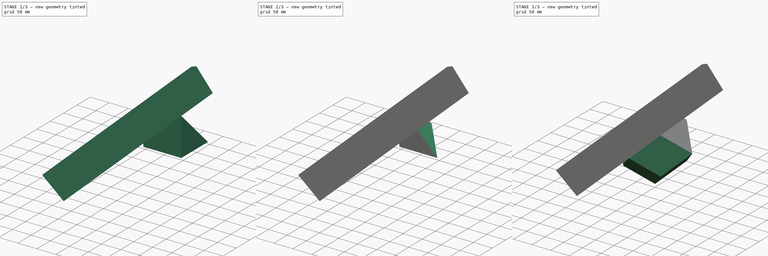
[diagram: build sequence overview — one tinted view per stage of 3, left to right]
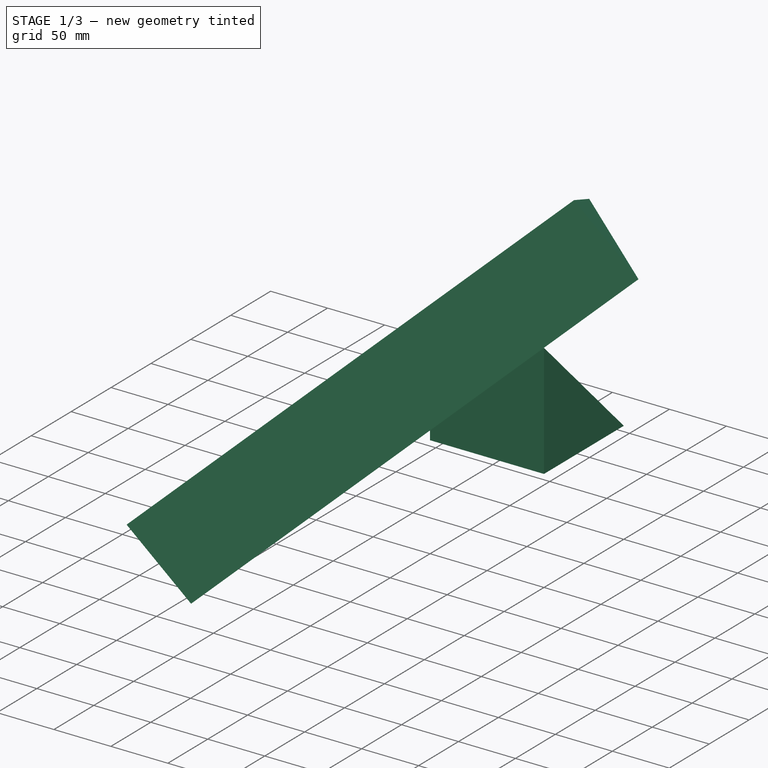
[diagram: stage 1 of 3 — iso view after this stage's code; geometry added in this stage tinted green]
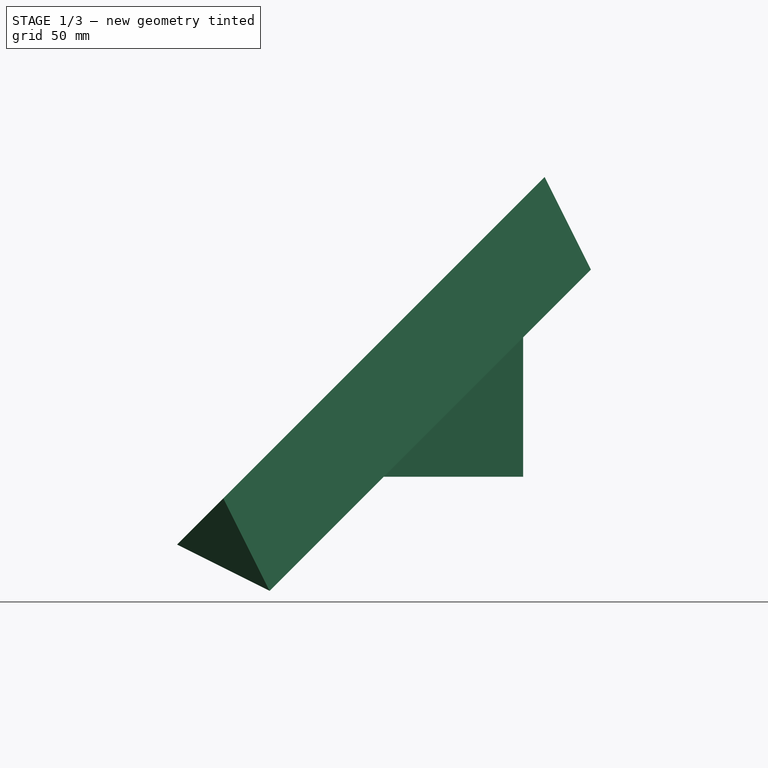
[diagram: stage 1 of 3 — front view after this stage's code; geometry added in this stage tinted green]
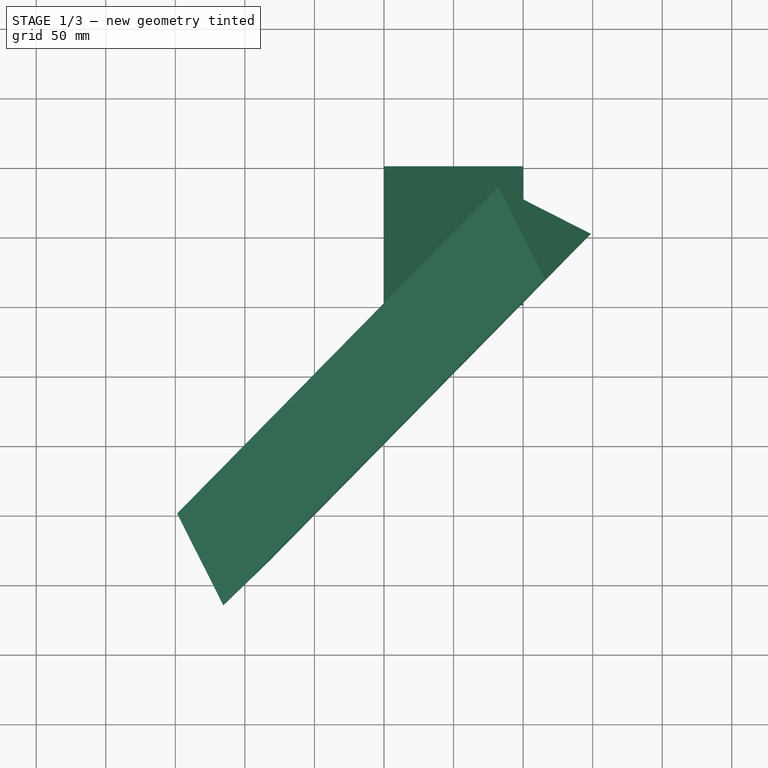
[diagram: stage 1 of 3 — top view after this stage's code; geometry added in this stage tinted green]
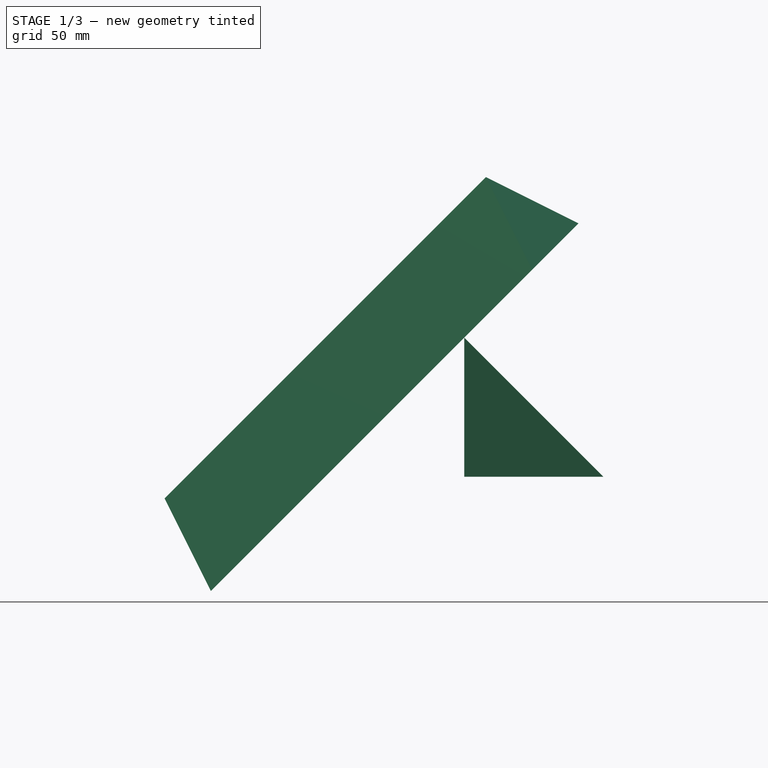
[diagram: stage 1 of 3 — right view after this stage's code; geometry added in this stage tinted green]
FCSTD DOCUMENT  (FreeCAD 1.0R39319 (Git))
Label: rhombic-dodecahedron
License: All rights reserved
LicenseURL: https://en.wikipedia.org/wiki/All_rights_reserved
objects: PartDesign::Plane×5, PartDesign::Pocket×3, PartDesign::Mirrored×3, PartDesign::Body×2, PartDesign::Point×2, App::VarSet×1, PartDesign::AdditiveBox×1, PartDesign::SubShapeBinder×1, PartDesign::CoordinateSystem×1, Sketcher::SketchObject×1, PartDesign::Pad×1
note: 34 computed .brp shape members not serialized (recipe doc carries the construction recipe); baked Part::Feature solids carry a one-line shape summary decoded from their .brp

FEATURE [App::VarSet] VarSet
  Dode = 70.7107
  DodeSize = 100
  expr: Dode = sqrt(2) * DodeSize * 0.5
FEATURE [PartDesign::AdditiveBox] Box
  AttacherType = Attacher::AttachEngine3D
  AttachmentSupport = -> [VarSet]
  Height = 100
  Length = 100
  Refine = true
  Suppressed = false
  Width = 100
  expr: Height = VarSet.DodeSize
  expr: Length = VarSet.DodeSize
  expr: Width = VarSet.DodeSize
FEATURE [PartDesign::Plane] DatumPlane
  AttachmentOffset = pos=(0,0,0) rot=(1,0,0;0.785398rad)
  AttachmentSupport = -> [Box]
  Length = 247.568
  MapMode = 47
  Placement = pos=(100,100,100) rot=(0,0.92388,-0.382683;3.14159rad)
  ResizeMode = 0
  Width = 330.411
FEATURE [PartDesign::Plane] DatumPlane001
  AttachmentOffset = pos=(0,0,0) rot=(-1,0,0;0.785398rad)
  AttachmentSupport = -> [Box]
  Length = 247.568
  MapMode = 47
  Placement = pos=(100,100,100) rot=(0.678598,-0.678598,-0.281085;2.59356rad)
  ResizeMode = 0
  Width = 330.411
FEATURE [PartDesign::Plane] DatumPlane002
  AttachmentOffset = pos=(0,0,0) rot=(1,0,0;0.785398rad)
  AttachmentSupport = -> [Box]
  Length = 247.568
  MapMode = 47
  Placement = pos=(100,100,100) rot=(0.678598,0.281085,-0.678598;2.59356rad)
  ResizeMode = 0
  Width = 330.411
FEATURE [PartDesign::Pocket] Pocket
  BaseFeature = -> Box
  Direction = (0,0.707107,0.707107)
  Length = 70.7107
  Length2 = 5
  Profile = -> DatumPlane
  Refine = true
  Reversed = true
  Suppressed = false
  Type = 0
  expr: Length = VarSet.Dode
FEATURE [PartDesign::Body] Body  label="rhombic-dodecahedron"
  AllowCompound = false
  Group = -> [Box,DatumPlane,DatumPlane001,DatumPlane002,Pocket,Pocket001,Pocket002,Mirrored,Mirrored001,Mirrored002]
  Origin = -> Origin
  Tip = -> Mirrored002
FEATURE [PartDesign::SubShapeBinder] Binder
  BindCopyOnChange = 0
  BindMode = 0
  ClaimChildren = false
  Context = -> Body001 [Binder.]
  Fuse = false
  MakeFace = true
  OffsetFill = false
  OffsetIntersection = false
  OffsetJoinType = 0
  OffsetOpenResult = false
  PartialLoad = false
  Refine = true
  Relative = true
  Support = -> [Body[Mirrored002.Face7]]
  _Version = 2
FEATURE [PartDesign::Point] DatumPoint
  AttacherType = Attacher::AttachEnginePoint
  AttachmentSupport = -> [Binder]
  MapMode = 37
  Placement = pos=(-6.2e-15,-50,50) rot=(0,0,1;0rad)
FEATURE [PartDesign::Plane] DatumPlane003
  AttachmentSupport = -> [Binder,DatumPoint]
  Length = 526.044
  MapMode = 7
  Placement = pos=(-33.3333,-33.3333,66.6667) rot=(0.187053,0.451587,0.872399;2.44807rad)
  ResizeMode = 0
  Width = 599.739
FEATURE [PartDesign::Point] DatumPoint001
  AttacherType = Attacher::AttachEnginePoint
  AttachmentSupport = -> [DatumPlane003]
  MapMode = 32
  Placement = pos=(-33.3333,-33.3333,66.6667) rot=(0.187053,0.451587,0.872399;2.44807rad)
FEATURE [PartDesign::CoordinateSystem] Local_CS
  AttacherType = Attacher::AttachEngine3D
  AttachmentSupport = -> [DatumPoint,DatumPoint001,Binder]
  MapMode = 49
  Placement = pos=(-6.2e-15,-50,50) rot=(0.120741,-0.379884,0.91712;2.57432rad)
FEATURE [PartDesign::Plane] DatumPlane004
  AttachmentSupport = -> [Local_CS]
  Length = 593.573
  MapMode = 3
  Placement = pos=(-5e-15,-50,50) rot=(0.281747,0.36718,0.886452;2.90924rad)
  ResizeMode = 0
  Width = 538.433
FEATURE [Sketcher::SketchObject] Sketch
  ArcFitTolerance = 1e-06
  AttachmentSupport = -> [DatumPlane004]
  FullyConstrained = false
  MakeInternals = false
  MapMode = 5
  Placement = pos=(-4.3e-15,-50,50) rot=(0.281747,0.36718,0.886452;2.90924rad)
  sketch-geometry (6):
    g0: GeomPoint X=40.75 Y=0 Z=0
    g1: GeomPoint X=0 Y=70.5811 Z=0
    g2: GeomPoint X=-60.5072 Y=0 Z=0
    g3: LineSegment StartX=40.75 StartY=0 StartZ=0 EndX=0 EndY=70.5811 EndZ=0
    g4: LineSegment StartX=0 StartY=70.5811 StartZ=0 EndX=-40.75 EndY=-4.832e-13 EndZ=0
    g5: LineSegment StartX=-40.75 StartY=-4.787e-13 StartZ=0 EndX=40.75 EndY=0 EndZ=0
  constraints (11):
    c: PointOnObject(g0,g-1)
    c: PointOnObject(g1,g-2)
    c: PointOnObject(g2,g-1)
    c: Coincident(g3,g0)
    c: Coincident(g3,g1)
    c: Coincident(g4,g1)
    c: Coincident(g5,g4)
    c: Coincident(g5,g0)
    c: Symmetric(g0,g4,g-1)
    c: DistanceX(g5,g5) = 81.5
    c: Equal(g4,g5)
FEATURE [PartDesign::Pad] Pad
  Direction = (0.57735,0.57735,0.57735)
  Length = 400
  Length2 = 10
  Midplane = true
  Placement = pos=(-5e-15,-50,50) rot=(0.281747,0.36718,0.886452;2.90924rad)
  Profile = -> Sketch
  ReferenceAxis = -> Sketch [N_Axis]
  Refine = true
  Suppressed = false
  Type = 0
FEATURE [PartDesign::Body] Body001
  AllowCompound = false
  Group = -> [Binder,DatumPoint,DatumPlane003,DatumPoint001,Local_CS,DatumPlane004,Sketch,Pad]
  Origin = -> Origin001
  Tip = -> Pad
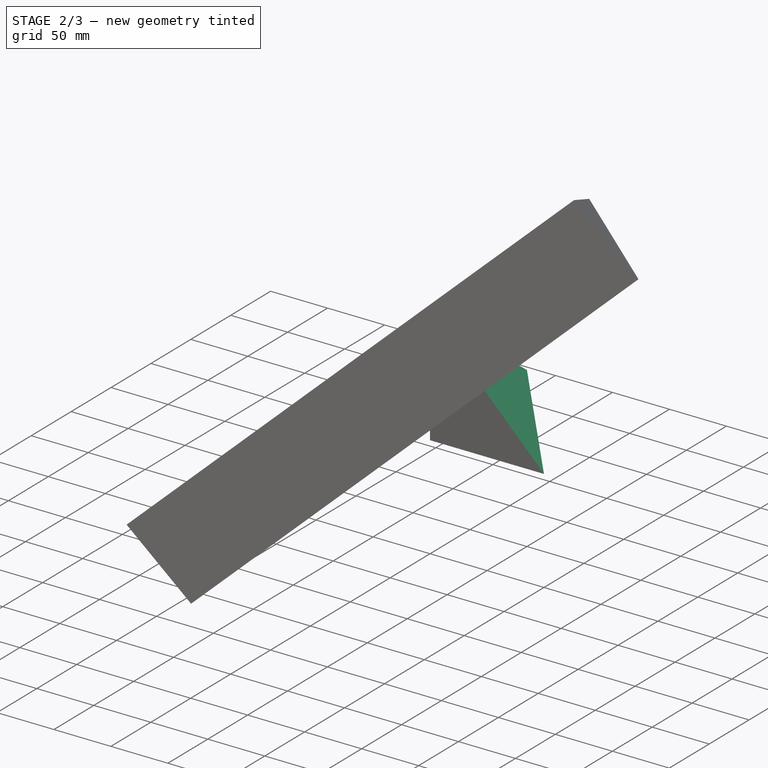
[diagram: stage 2 of 3 — iso view after this stage's code; geometry added in this stage tinted green]
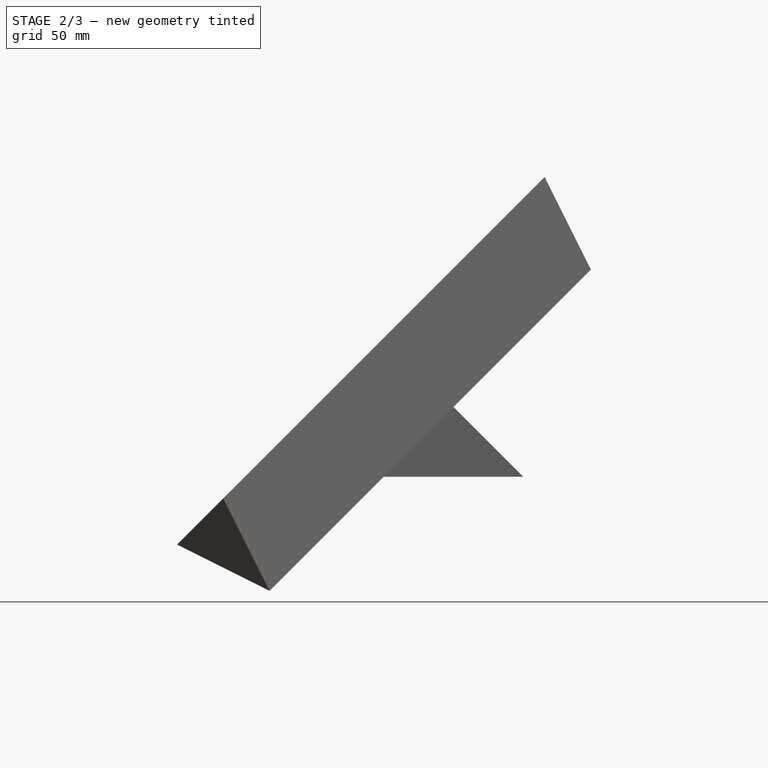
[diagram: stage 2 of 3 — front view after this stage's code; geometry added in this stage tinted green]
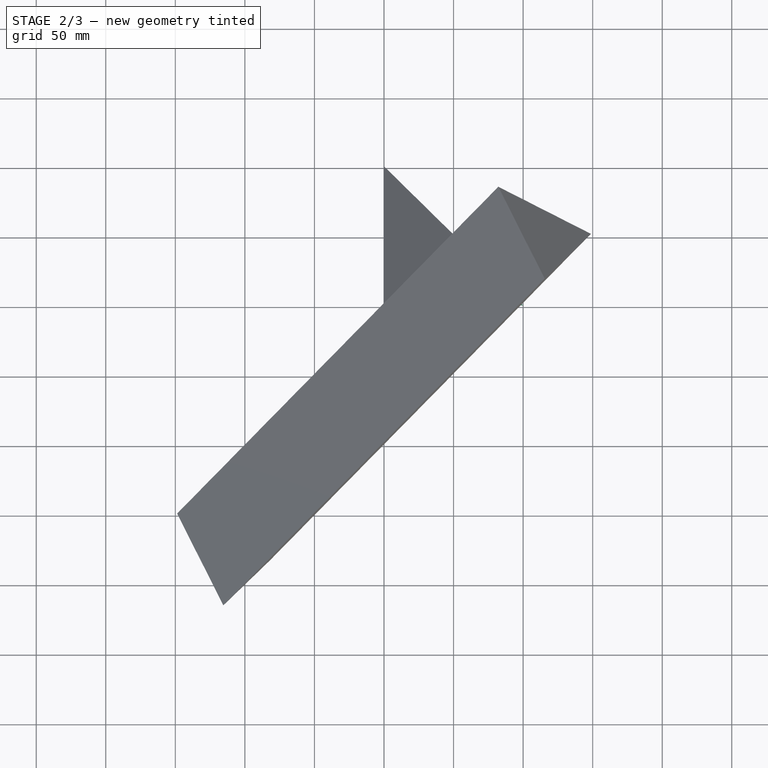
[diagram: stage 2 of 3 — top view after this stage's code; geometry added in this stage tinted green]
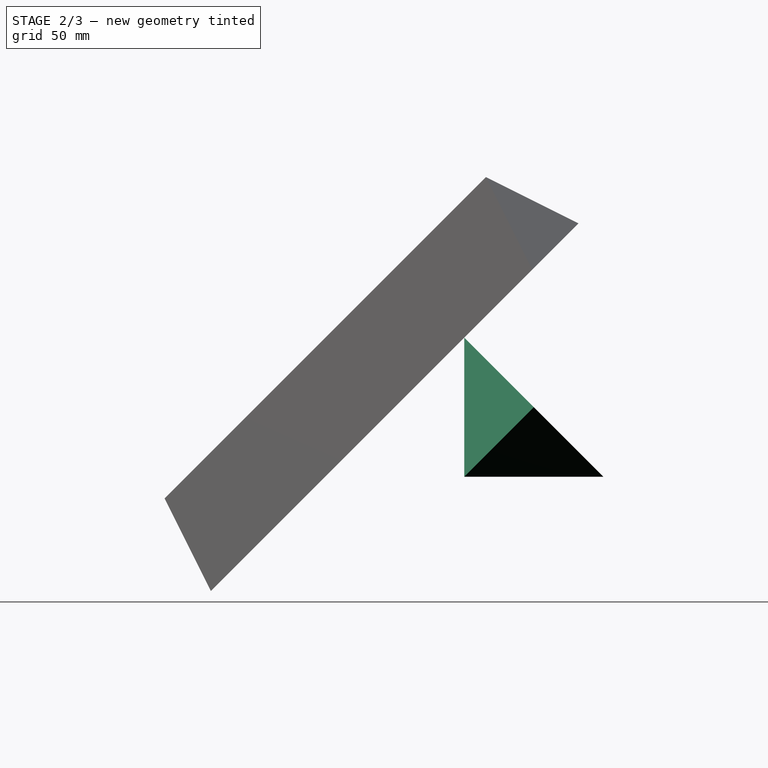
[diagram: stage 2 of 3 — right view after this stage's code; geometry added in this stage tinted green]
FEATURE [PartDesign::Pocket] Pocket001
  BaseFeature = -> Pocket
  Direction = (0.707107,2e-16,0.707107)
  Length = 70.7107
  Length2 = 5
  Profile = -> DatumPlane001
  Refine = true
  Reversed = true
  Suppressed = false
  Type = 0
  expr: Length = VarSet.Dode
FEATURE [PartDesign::Pocket] Pocket002
  BaseFeature = -> Pocket001
  Direction = (0.707107,0.707107,0)
  Length = 70.7107
  Length2 = 5
  Profile = -> DatumPlane002
  Refine = true
  Reversed = true
  Suppressed = false
  Type = 0
  expr: Length = VarSet.Dode
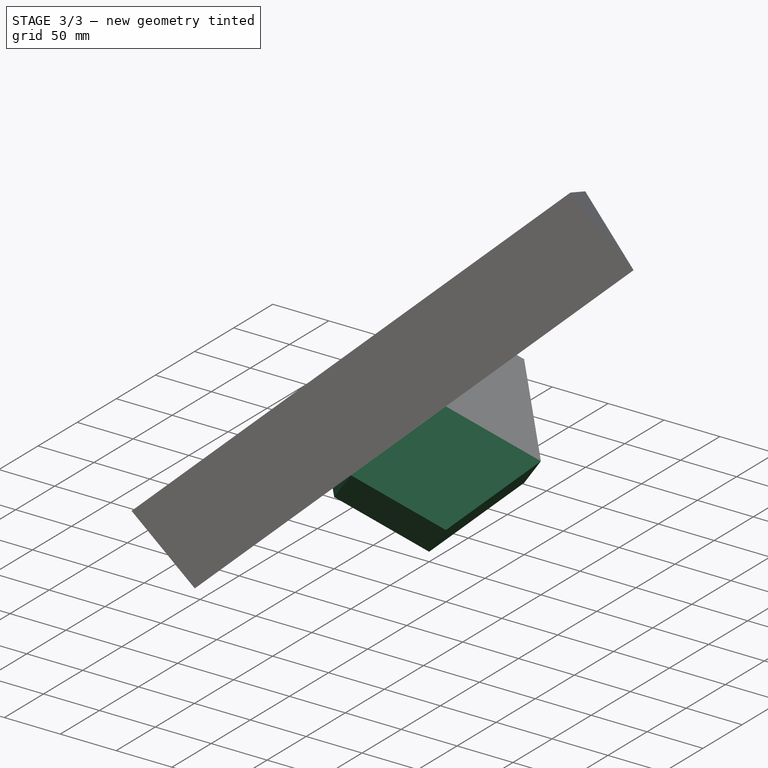
[diagram: stage 3 of 3 — iso view after this stage's code; geometry added in this stage tinted green]
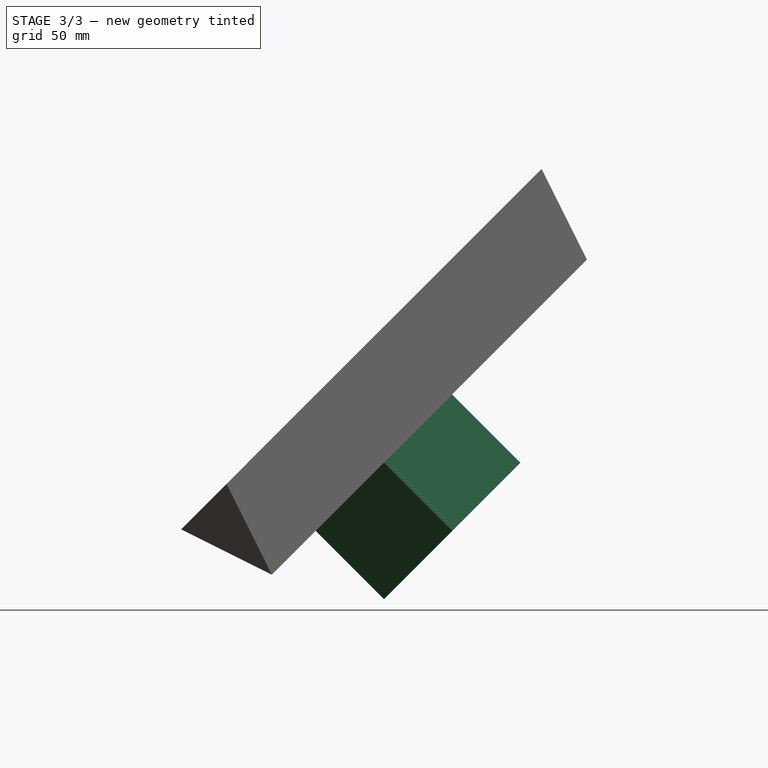
[diagram: stage 3 of 3 — front view after this stage's code; geometry added in this stage tinted green]
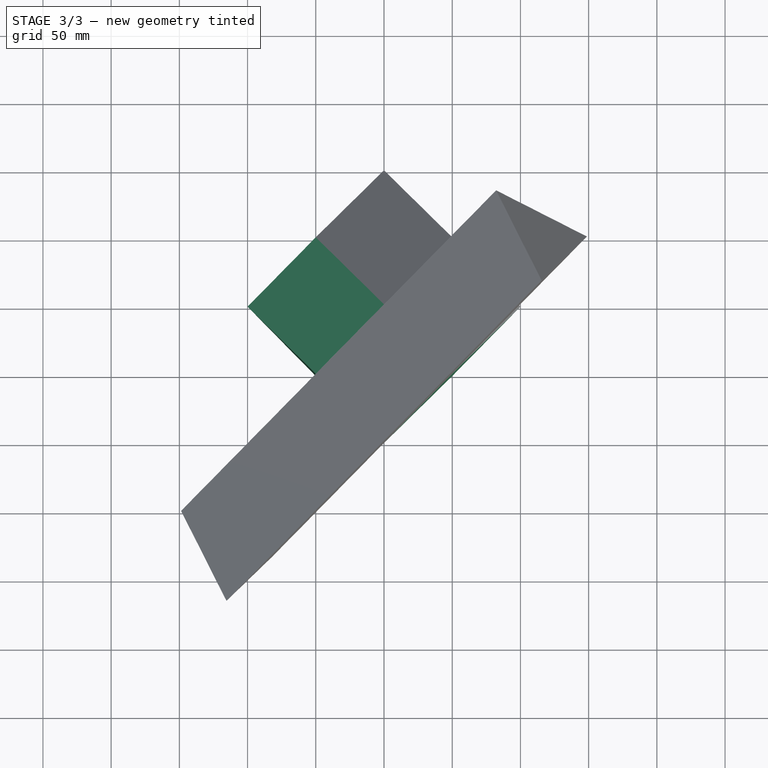
[diagram: stage 3 of 3 — top view after this stage's code; geometry added in this stage tinted green]
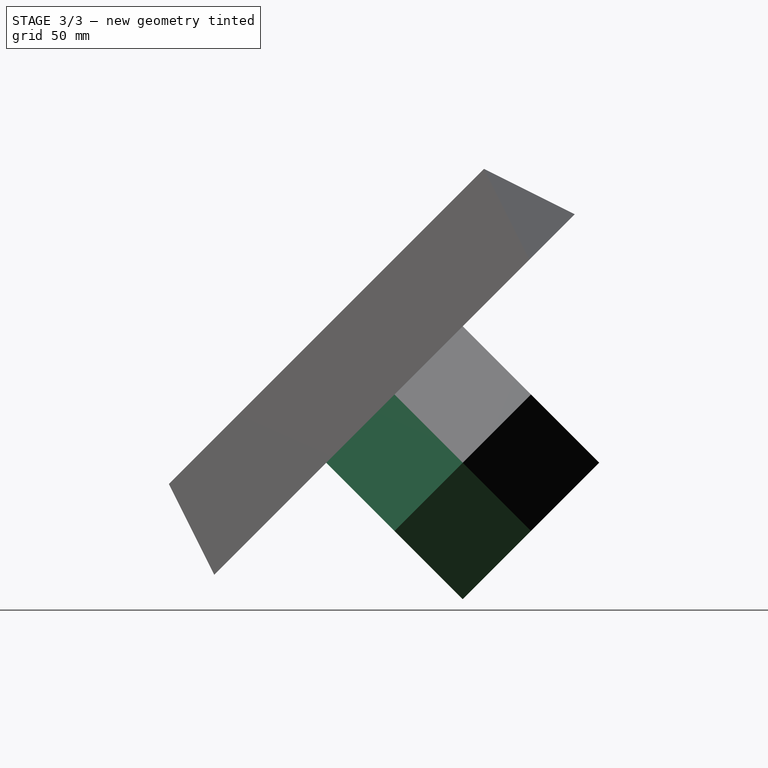
[diagram: stage 3 of 3 — right view after this stage's code; geometry added in this stage tinted green]
FEATURE [PartDesign::Mirrored] Mirrored
  BaseFeature = -> Pocket002
  MirrorPlane = -> XY_Plane
  Refine = true
  Suppressed = false
  TransformMode = 1
FEATURE [PartDesign::Mirrored] Mirrored001
  BaseFeature = -> Mirrored
  MirrorPlane = -> YZ_Plane
  Refine = true
  Suppressed = false
  TransformMode = 1
FEATURE [PartDesign::Mirrored] Mirrored002
  BaseFeature = -> Mirrored001
  MirrorPlane = -> XZ_Plane
  Refine = true
  Suppressed = false
  TransformMode = 1
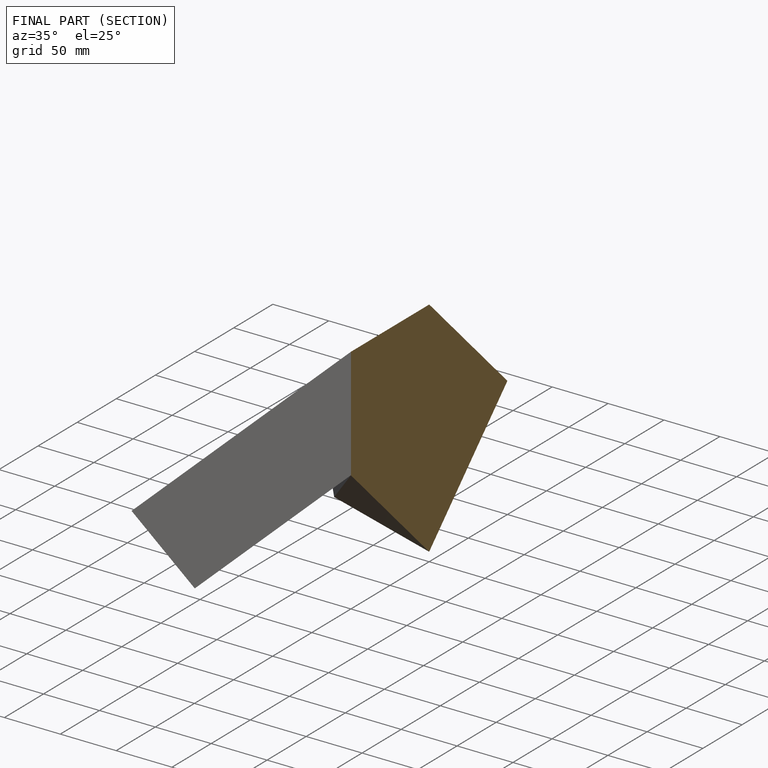
[diagram: finished part — half-section view (interior)]
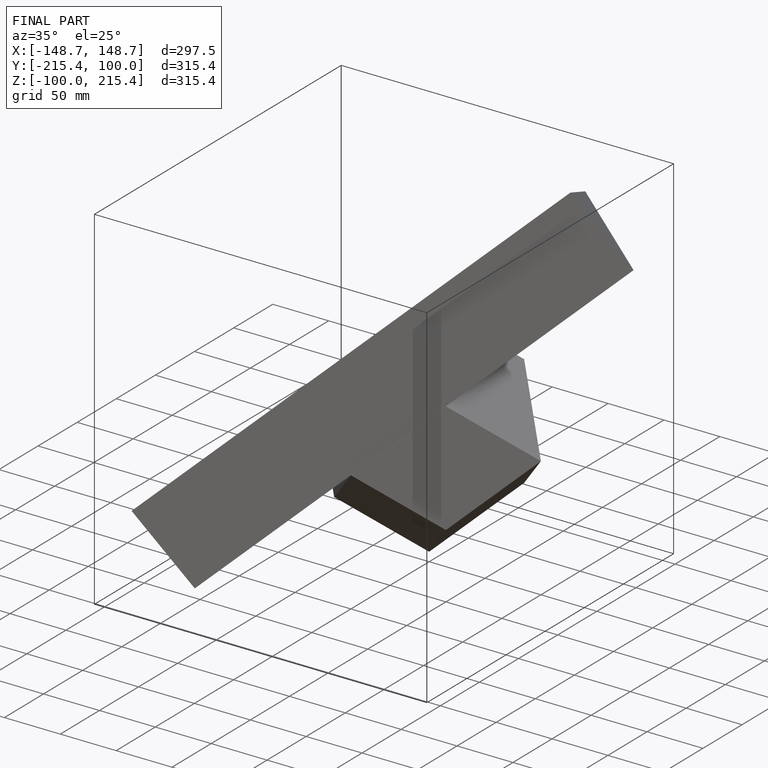
[diagram: finished part — iso view with bounding-box wireframe]
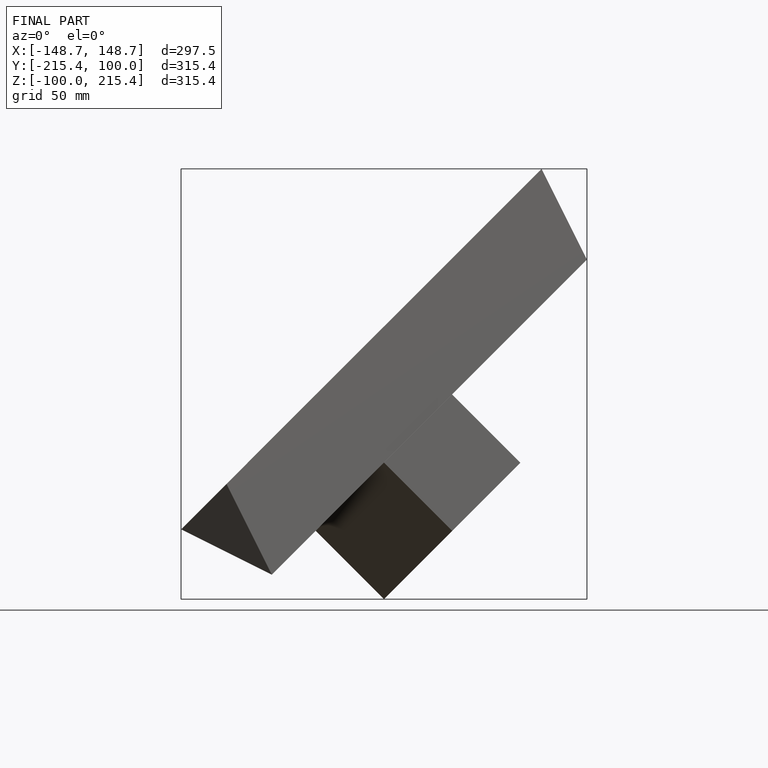
[diagram: finished part — front view with bounding-box wireframe]
